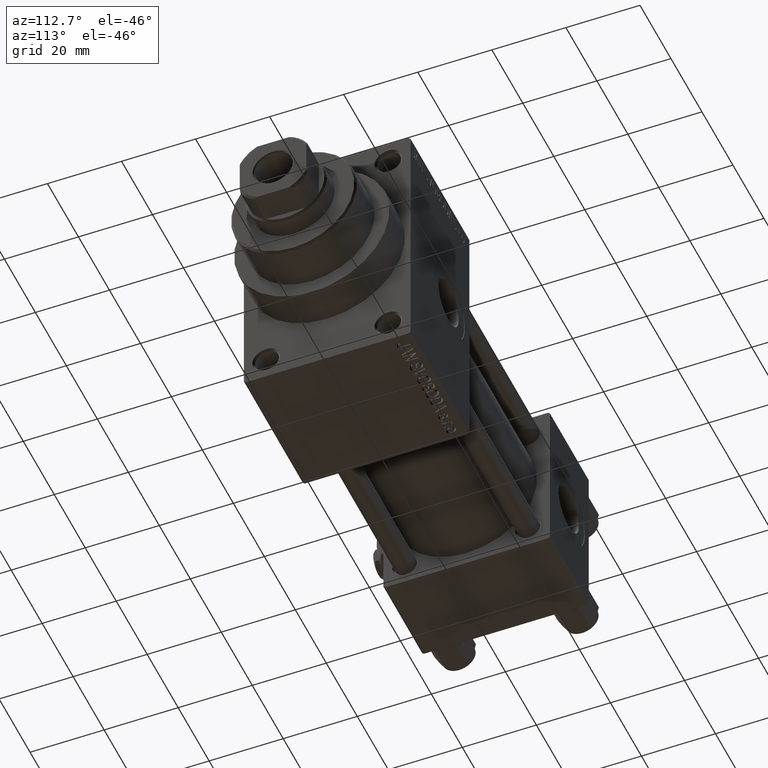
[diagram: clean part render]
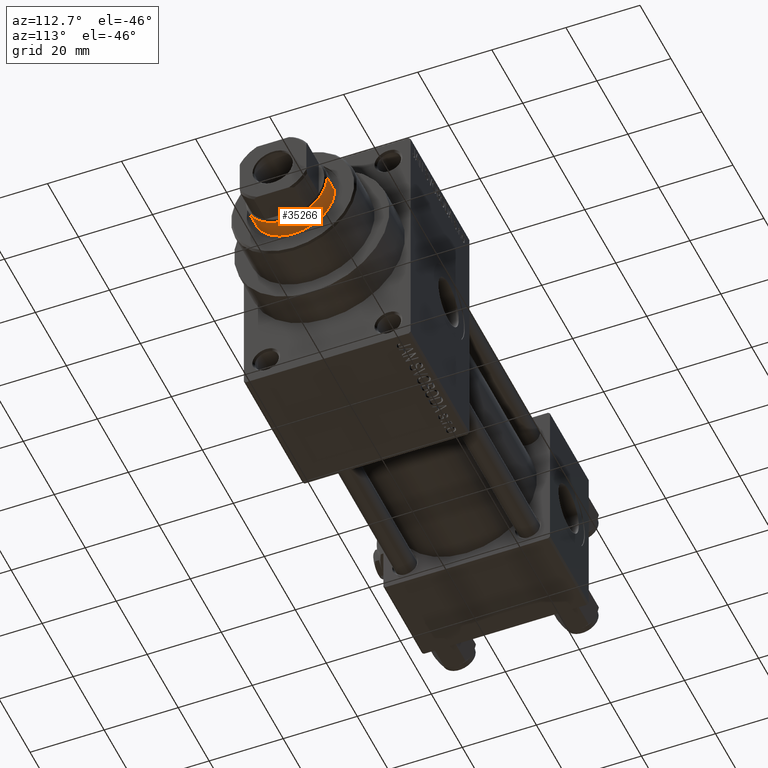
[diagram: same view with one face highlighted and labeled with its STEP entity id]
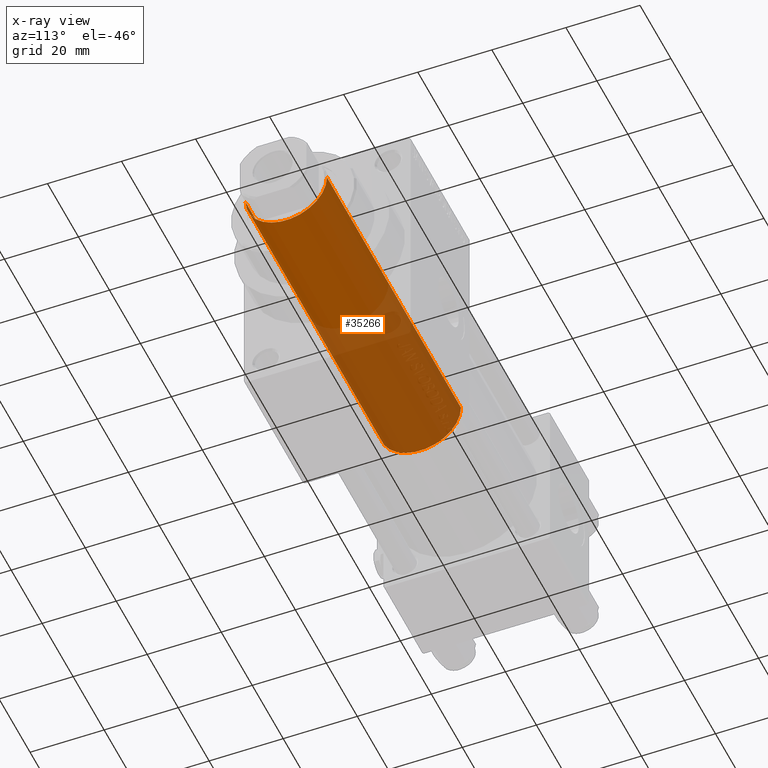
[diagram: x-ray of the same camera — body ghosted, the highlighted face saturated]
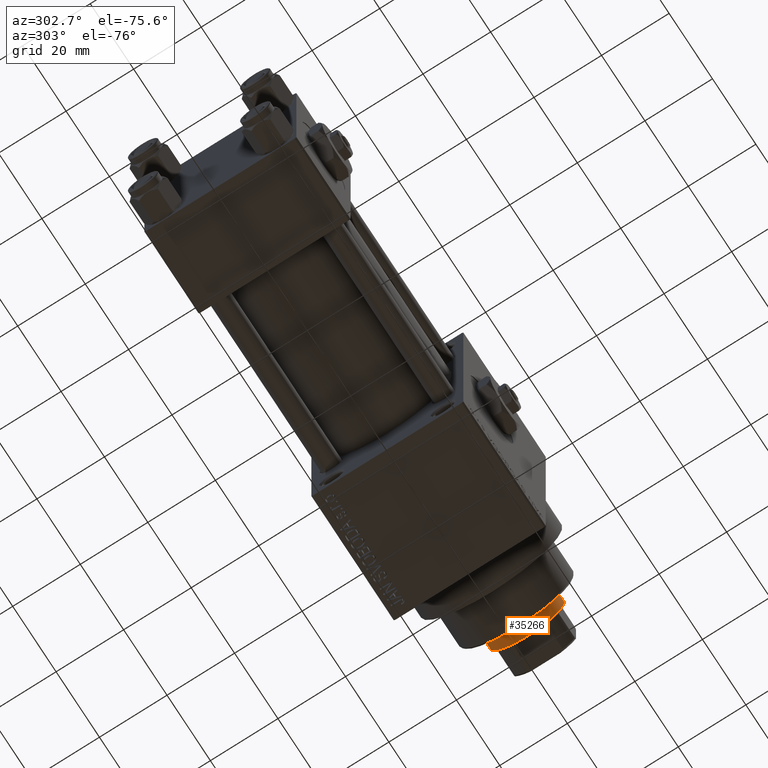
[diagram: same view with one face highlighted and labeled with its STEP entity id]
A machine part, auxiliary view. The second image highlights one B-rep face of the part: STEP entity #35266.
The next image is the same camera in x-ray: the body ghosted, the highlighted face saturated — about 54% of this face is hidden behind the body in this view.
A second angle (auxiliary view) of the same face is appended — the face is thin or edge-on in the first view.
In plain terms, the highlighted cylindrical surface (partial cylindrical patch) has radius 11 mm, axis along (-1, 0, 0).
Its self-contained STEP definition (entity closure, byte-faithful):
#477 = ORIENTED_EDGE ( 'NONE', *, *, #28284, .F. ) ;
#1499 = VERTEX_POINT ( 'NONE', #19020 ) ;
#2047 = DIRECTION ( 'NONE',  ( 1.000000000000000000, 0.000000000000000000, 0.000000000000000000 ) ) ;
#2200 = ORIENTED_EDGE ( 'NONE', *, *, #44405, .T. ) ;
#2494 = EDGE_CURVE ( 'NONE', #11899, #1499, #26421, .T. ) ;
#3329 = CARTESIAN_POINT ( 'NONE',  ( 11.00000000000000000, 1.347111479062088405E-15, 117.0000000000000000 ) ) ;
#7305 = FACE_OUTER_BOUND ( 'NONE', #46500, .T. ) ;
#10947 = ORIENTED_EDGE ( 'NONE', *, *, #2494, .T. ) ;
#11518 = DIRECTION ( 'NONE',  ( -1.000000000000000000, 0.000000000000000000, 0.000000000000000000 ) ) ;
#11593 = EDGE_CURVE ( 'NONE', #1499, #37632, #13163, .T. ) ;
#11899 = VERTEX_POINT ( 'NONE', #21098 ) ;
#12161 = CARTESIAN_POINT ( 'NONE',  ( 0.000000000000000000, 0.000000000000000000, 116.5000000000000000 ) ) ;
#13163 = CIRCLE ( 'NONE', #18745, 11.00000000000000000 ) ;
#16709 = CARTESIAN_POINT ( 'NONE',  ( 0.000000000000000000, 0.000000000000000000, 30.00000000000000000 ) ) ;
#18324 = CIRCLE ( 'NONE', #46068, 11.00000000000000000 ) ;
#18474 = DIRECTION ( 'NONE',  ( -0.000000000000000000, -0.000000000000000000, -1.000000000000000000 ) ) ;
#18745 = AXIS2_PLACEMENT_3D ( 'NONE', #16709, #32831, #2047 ) ;
#19020 = CARTESIAN_POINT ( 'NONE',  ( 11.00000000000000000, 1.347111479062088405E-15, 30.00000000000000000 ) ) ;
#21098 = CARTESIAN_POINT ( 'NONE',  ( 11.00000000000000000, 1.347111479062088405E-15, 116.5000000000000000 ) ) ;
#21948 = CYLINDRICAL_SURFACE ( 'NONE', #40179, 11.00000000000000000 ) ;
#22861 = LINE ( 'NONE', #29328, #29351 ) ;
#26421 = LINE ( 'NONE', #3329, #36028 ) ;
#27089 = VERTEX_POINT ( 'NONE', #39812 ) ;
#28284 = EDGE_CURVE ( 'NONE', #27089, #37632, #22861, .T. ) ;
#29328 = CARTESIAN_POINT ( 'NONE',  ( -11.00000000000000000, 0.000000000000000000, 117.0000000000000000 ) ) ;
#29351 = VECTOR ( 'NONE', #44452, 1000.000000000000000 ) ;
#30388 = DIRECTION ( 'NONE',  ( -0.000000000000000000, -0.000000000000000000, -1.000000000000000000 ) ) ;
#32831 = DIRECTION ( 'NONE',  ( 0.000000000000000000, 0.000000000000000000, 1.000000000000000000 ) ) ;
#34363 = CARTESIAN_POINT ( 'NONE',  ( -11.00000000000000000, 0.000000000000000000, 30.00000000000000000 ) ) ;
#35266 = ADVANCED_FACE ( 'NONE', ( #7305 ), #21948, .T. ) ;
#36028 = VECTOR ( 'NONE', #18474, 1000.000000000000000 ) ;
#37569 = CARTESIAN_POINT ( 'NONE',  ( 0.000000000000000000, 0.000000000000000000, 117.0000000000000000 ) ) ;
#37632 = VERTEX_POINT ( 'NONE', #34363 ) ;
#38482 = ORIENTED_EDGE ( 'NONE', *, *, #11593, .T. ) ;
#39812 = CARTESIAN_POINT ( 'NONE',  ( -11.00000000000000000, 0.000000000000000000, 116.5000000000000000 ) ) ;
#40179 = AXIS2_PLACEMENT_3D ( 'NONE', #37569, #30388, #11518 ) ;
#41958 = DIRECTION ( 'NONE',  ( 0.000000000000000000, 0.000000000000000000, -1.000000000000000000 ) ) ;
#44405 = EDGE_CURVE ( 'NONE', #27089, #11899, #18324, .T. ) ;
#44452 = DIRECTION ( 'NONE',  ( -0.000000000000000000, -0.000000000000000000, -1.000000000000000000 ) ) ;
#46068 = AXIS2_PLACEMENT_3D ( 'NONE', #12161, #41958, #46160 ) ;
#46160 = DIRECTION ( 'NONE',  ( 1.000000000000000000, 0.000000000000000000, 0.000000000000000000 ) ) ;
#46500 = EDGE_LOOP ( 'NONE', ( #2200, #10947, #38482, #477 ) ) ;